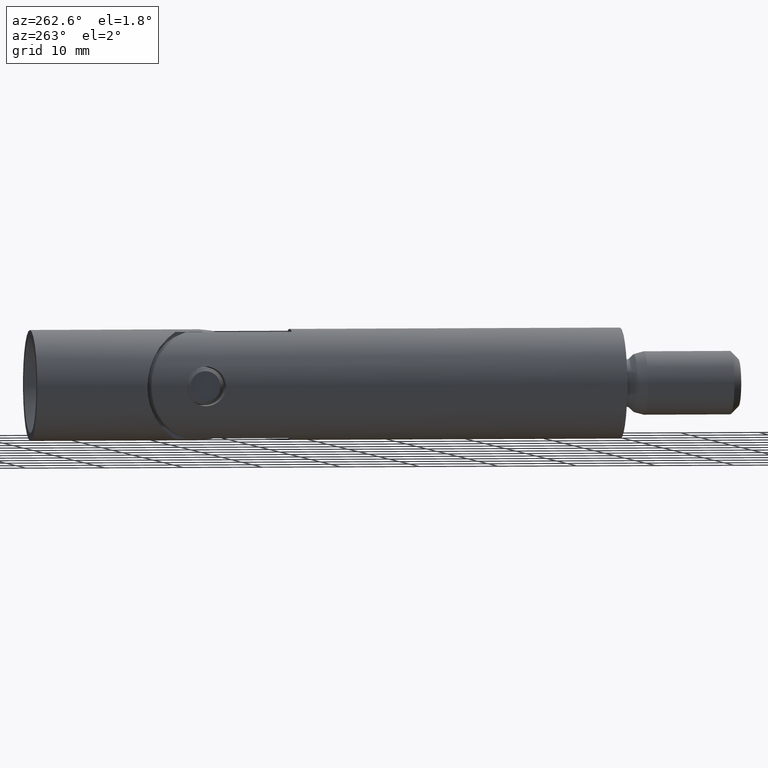
[diagram: clean part render]
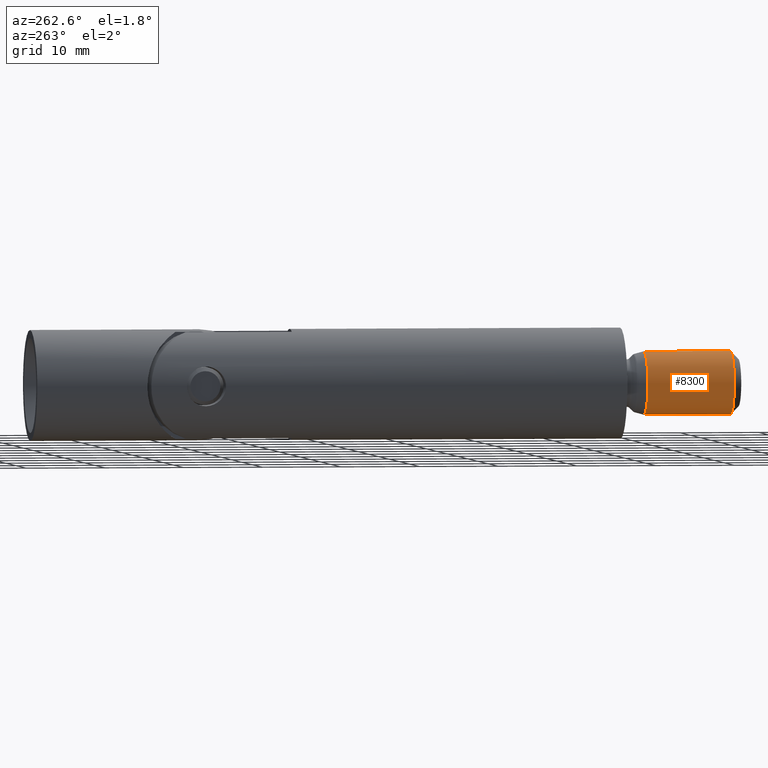
[diagram: same view with one face highlighted and labeled with its STEP entity id]
A machine part, auxiliary view. The second image highlights one B-rep face of the part: STEP entity #8300.
In plain terms, the highlighted cylindrical surface (edge-blend (fillet) strip) has radius 4 mm, axis along (-0, -1, -0).
Its self-contained STEP definition (entity closure, byte-faithful):
#553 = CYLINDRICAL_SURFACE ( 'NONE', #11651, 4.000000000000000000 ) ;
#1918 = ORIENTED_EDGE ( 'NONE', *, *, #7874, .T. ) ;
#4982 = VERTEX_POINT ( 'NONE', #11501 ) ;
#5738 = CARTESIAN_POINT ( 'NONE',  ( 0.0000000000000000000, -14.00000000000000200, 3.999999999999998200 ) ) ;
#5765 = EDGE_CURVE ( 'NONE', #12232, #4982, #6240, .T. ) ;
#5982 = VERTEX_POINT ( 'NONE', #5738 ) ;
#6031 = FACE_OUTER_BOUND ( 'NONE', #14522, .T. ) ;
#6240 = LINE ( 'NONE', #7909, #6419 ) ;
#6301 = ORIENTED_EDGE ( 'NONE', *, *, #5765, .T. ) ;
#6419 = VECTOR ( 'NONE', #10294, 1000.000000000000000 ) ;
#6719 = EDGE_CURVE ( 'NONE', #10700, #5982, #9762, .T. ) ;
#6739 = VECTOR ( 'NONE', #12109, 1000.000000000000000 ) ;
#6890 = AXIS2_PLACEMENT_3D ( 'NONE', #9402, #10395, #12702 ) ;
#6900 = EDGE_CURVE ( 'NONE', #5982, #4982, #9580, .T. ) ;
#7508 = CARTESIAN_POINT ( 'NONE',  ( 4.898587196589412800E-016, 0.0000000000000000000, 4.000000000000000000 ) ) ;
#7538 = CARTESIAN_POINT ( 'NONE',  ( 0.0000000000000000000, -2.999999999999999100, -4.000000000000000000 ) ) ;
#7866 = CARTESIAN_POINT ( 'NONE',  ( 0.0000000000000000000, -14.00000000000000200, 0.0000000000000000000 ) ) ;
#7874 = EDGE_CURVE ( 'NONE', #10700, #12232, #9735, .T. ) ;
#7909 = CARTESIAN_POINT ( 'NONE',  ( 0.0000000000000000000, 0.0000000000000000000, -4.000000000000000000 ) ) ;
#8300 = ADVANCED_FACE ( 'NONE', ( #6031 ), #553, .T. ) ;
#8314 = CARTESIAN_POINT ( 'NONE',  ( 4.898587196589412800E-016, -2.999999999999999100, 4.000000000000000000 ) ) ;
#8688 = AXIS2_PLACEMENT_3D ( 'NONE', #7866, #10302, #11286 ) ;
#9037 = CARTESIAN_POINT ( 'NONE',  ( 0.0000000000000000000, 0.0000000000000000000, 0.0000000000000000000 ) ) ;
#9079 = ORIENTED_EDGE ( 'NONE', *, *, #6900, .F. ) ;
#9402 = CARTESIAN_POINT ( 'NONE',  ( 0.0000000000000000000, -2.999999999999999100, 0.0000000000000000000 ) ) ;
#9580 = CIRCLE ( 'NONE', #8688, 4.000000000000000000 ) ;
#9735 = CIRCLE ( 'NONE', #6890, 4.000000000000000000 ) ;
#9762 = LINE ( 'NONE', #7508, #6739 ) ;
#10294 = DIRECTION ( 'NONE',  ( -0.0000000000000000000, -1.000000000000000000, -0.0000000000000000000 ) ) ;
#10302 = DIRECTION ( 'NONE',  ( -0.0000000000000000000, -1.000000000000000000, -0.0000000000000000000 ) ) ;
#10395 = DIRECTION ( 'NONE',  ( -0.0000000000000000000, -1.000000000000000000, -0.0000000000000000000 ) ) ;
#10481 = ORIENTED_EDGE ( 'NONE', *, *, #6719, .F. ) ;
#10700 = VERTEX_POINT ( 'NONE', #8314 ) ;
#11174 = DIRECTION ( 'NONE',  ( -0.0000000000000000000, -1.000000000000000000, -0.0000000000000000000 ) ) ;
#11286 = DIRECTION ( 'NONE',  ( 0.0000000000000000000, 0.0000000000000000000, -1.000000000000000000 ) ) ;
#11501 = CARTESIAN_POINT ( 'NONE',  ( 4.898587196589410900E-016, -14.00000000000000200, -3.999999999999998200 ) ) ;
#11651 = AXIS2_PLACEMENT_3D ( 'NONE', #9037, #11174, #13495 ) ;
#12109 = DIRECTION ( 'NONE',  ( -0.0000000000000000000, -1.000000000000000000, -0.0000000000000000000 ) ) ;
#12232 = VERTEX_POINT ( 'NONE', #7538 ) ;
#12702 = DIRECTION ( 'NONE',  ( 0.0000000000000000000, 0.0000000000000000000, -1.000000000000000000 ) ) ;
#13495 = DIRECTION ( 'NONE',  ( 0.0000000000000000000, 0.0000000000000000000, -1.000000000000000000 ) ) ;
#14522 = EDGE_LOOP ( 'NONE', ( #10481, #1918, #6301, #9079 ) ) ;